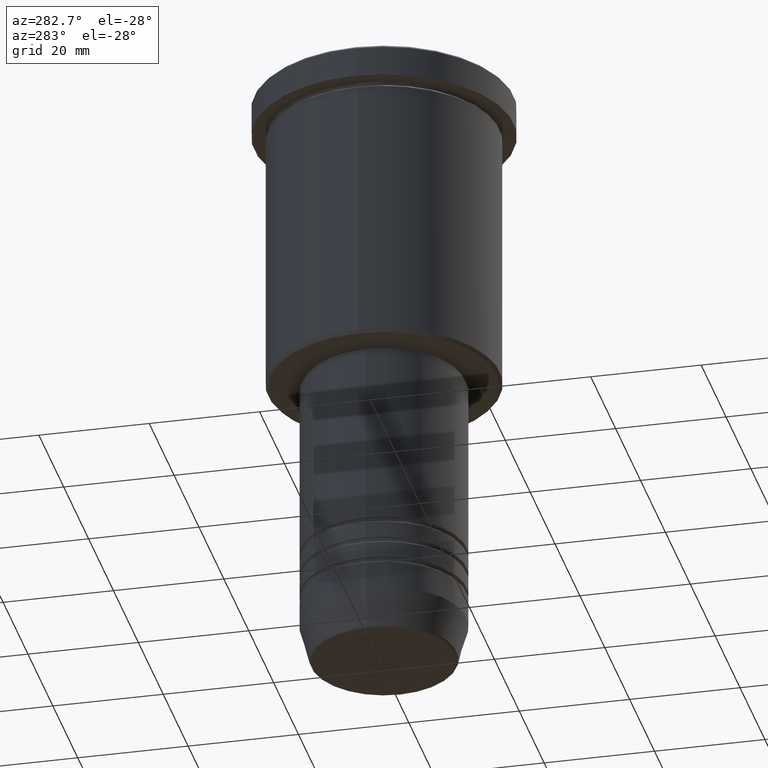
[diagram: clean part render]
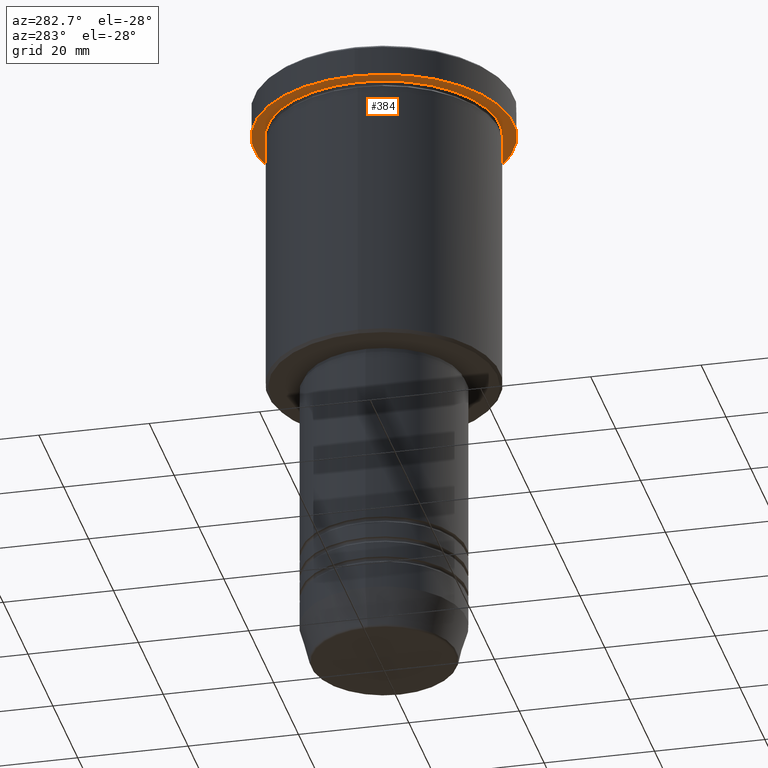
[diagram: same view with one face highlighted and labeled with its STEP entity id]
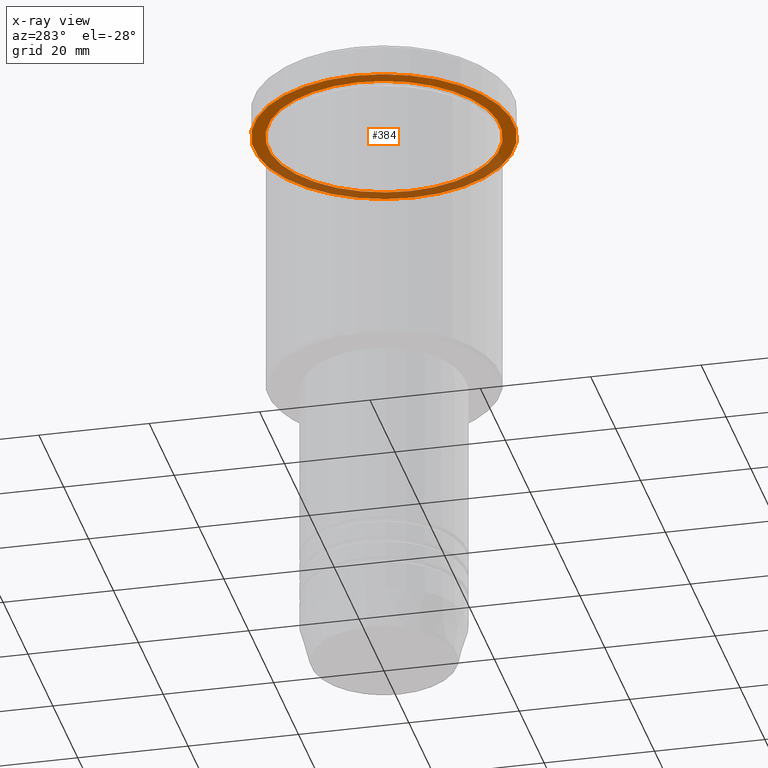
[diagram: x-ray of the same camera — body ghosted, the highlighted face saturated]
A machine part, auxiliary view. The second image highlights one B-rep face of the part: STEP entity #384.
The next image is the same camera in x-ray: the body ghosted, the highlighted face saturated — about 38% of this face is hidden behind the body in this view.
In plain terms, the highlighted planar face has unit normal (0, 0, -1).
Its self-contained STEP definition (entity closure, byte-faithful):
#13 = EDGE_CURVE ( 'NONE', #1180, #693, #635, .T. ) ;
#31 = CARTESIAN_POINT ( 'NONE',  ( -23.50000000000000000, 2.877919977996280320E-15, -5.999999999999993783 ) ) ;
#56 = DIRECTION ( 'NONE',  ( -0.000000000000000000, -0.000000000000000000, 1.000000000000000000 ) ) ;
#86 = CARTESIAN_POINT ( 'NONE',  ( 23.50000000000000000, 0.000000000000000000, -5.999999999999993783 ) ) ;
#130 = EDGE_LOOP ( 'NONE', ( #544, #346 ) ) ;
#160 = ORIENTED_EDGE ( 'NONE', *, *, #224, .F. ) ;
#224 = EDGE_CURVE ( 'NONE', #808, #351, #494, .T. ) ;
#230 = ORIENTED_EDGE ( 'NONE', *, *, #648, .F. ) ;
#237 = CARTESIAN_POINT ( 'NONE',  ( 0.000000000000000000, 0.000000000000000000, -5.999999999999993783 ) ) ;
#243 = CARTESIAN_POINT ( 'NONE',  ( 0.000000000000000000, 0.000000000000000000, -5.999999999999993783 ) ) ;
#254 = PLANE ( 'NONE',  #1142 ) ;
#265 = DIRECTION ( 'NONE',  ( -1.000000000000000000, 0.000000000000000000, -0.000000000000000000 ) ) ;
#271 = CARTESIAN_POINT ( 'NONE',  ( -21.00000000000000000, 0.000000000000000000, -5.999999999999992895 ) ) ;
#273 = FACE_BOUND ( 'NONE', #130, .T. ) ;
#292 = DIRECTION ( 'NONE',  ( -0.000000000000000000, -0.000000000000000000, 1.000000000000000000 ) ) ;
#321 = AXIS2_PLACEMENT_3D ( 'NONE', #968, #410, #962 ) ;
#346 = ORIENTED_EDGE ( 'NONE', *, *, #13, .T. ) ;
#351 = VERTEX_POINT ( 'NONE', #86 ) ;
#364 = CARTESIAN_POINT ( 'NONE',  ( 21.00000000000000000, 2.571758278209441661E-15, -5.999999999999992895 ) ) ;
#384 = ADVANCED_FACE ( 'NONE', ( #273, #1074 ), #254, .T. ) ;
#385 = CARTESIAN_POINT ( 'NONE',  ( 0.000000000000000000, 0.000000000000000000, -5.999999999999993783 ) ) ;
#410 = DIRECTION ( 'NONE',  ( -0.000000000000000000, -0.000000000000000000, 1.000000000000000000 ) ) ;
#463 = EDGE_LOOP ( 'NONE', ( #230, #160 ) ) ;
#494 = CIRCLE ( 'NONE', #321, 23.50000000000000000 ) ;
#544 = ORIENTED_EDGE ( 'NONE', *, *, #586, .T. ) ;
#586 = EDGE_CURVE ( 'NONE', #693, #1180, #779, .T. ) ;
#624 = CARTESIAN_POINT ( 'NONE',  ( 0.000000000000000000, 23.50000000000000000, -5.999999999999993783 ) ) ;
#635 = CIRCLE ( 'NONE', #874, 21.00000000000000000 ) ;
#648 = EDGE_CURVE ( 'NONE', #351, #808, #995, .T. ) ;
#693 = VERTEX_POINT ( 'NONE', #271 ) ;
#779 = CIRCLE ( 'NONE', #1047, 21.00000000000000000 ) ;
#780 = DIRECTION ( 'NONE',  ( 1.000000000000000000, 0.000000000000000000, 0.000000000000000000 ) ) ;
#801 = AXIS2_PLACEMENT_3D ( 'NONE', #237, #56, #780 ) ;
#808 = VERTEX_POINT ( 'NONE', #31 ) ;
#832 = DIRECTION ( 'NONE',  ( -1.000000000000000000, 0.000000000000000000, 0.000000000000000000 ) ) ;
#874 = AXIS2_PLACEMENT_3D ( 'NONE', #385, #292, #832 ) ;
#891 = DIRECTION ( 'NONE',  ( -1.000000000000000000, 0.000000000000000000, 0.000000000000000000 ) ) ;
#962 = DIRECTION ( 'NONE',  ( 1.000000000000000000, 0.000000000000000000, 0.000000000000000000 ) ) ;
#968 = CARTESIAN_POINT ( 'NONE',  ( 0.000000000000000000, 0.000000000000000000, -5.999999999999993783 ) ) ;
#983 = DIRECTION ( 'NONE',  ( 0.000000000000000000, 0.000000000000000000, -1.000000000000000000 ) ) ;
#987 = DIRECTION ( 'NONE',  ( -0.000000000000000000, -0.000000000000000000, 1.000000000000000000 ) ) ;
#995 = CIRCLE ( 'NONE', #801, 23.50000000000000000 ) ;
#1047 = AXIS2_PLACEMENT_3D ( 'NONE', #243, #987, #891 ) ;
#1074 = FACE_OUTER_BOUND ( 'NONE', #463, .T. ) ;
#1142 = AXIS2_PLACEMENT_3D ( 'NONE', #624, #983, #265 ) ;
#1180 = VERTEX_POINT ( 'NONE', #364 ) ;